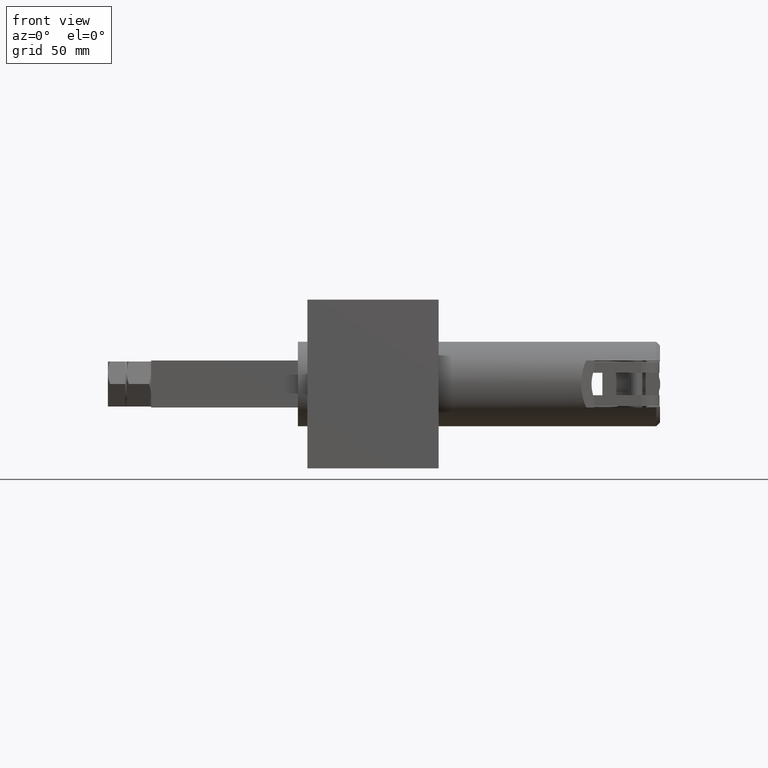
[diagram: clean part render]
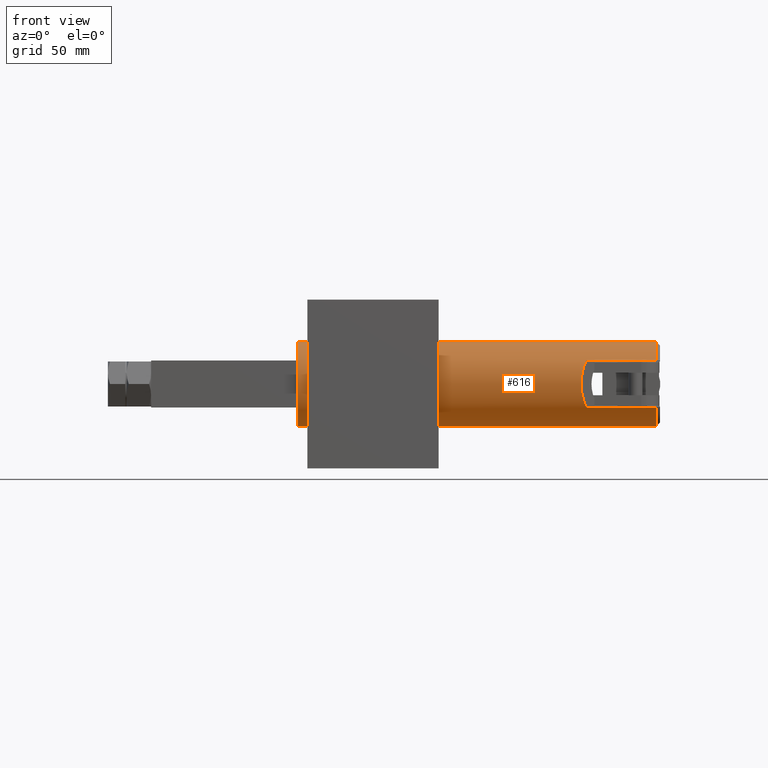
[diagram: same view with one face highlighted and labeled with its STEP entity id]
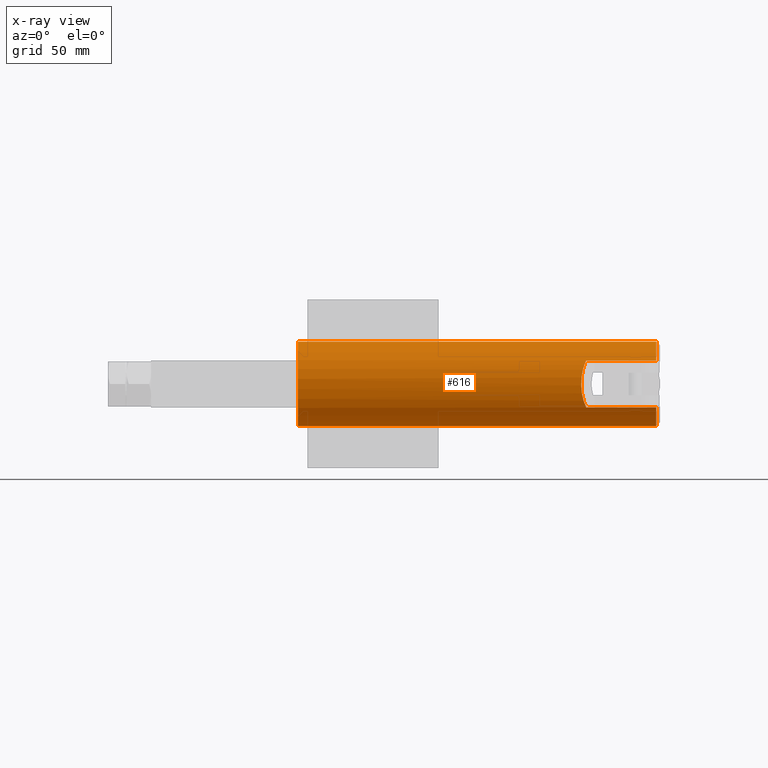
[diagram: x-ray of the same camera — body ghosted, the highlighted face saturated]
A machine part, front view. The second image highlights one B-rep face of the part: STEP entity #616.
The next image is the same camera in x-ray: the body ghosted, the highlighted face saturated — about 0% of this face is hidden behind the body in this view.
In plain terms, the highlighted cylindrical surface (partial cylindrical patch) has radius 22.5 mm, axis along (-1, -0, -0).
Its self-contained STEP definition (entity closure, byte-faithful):
#41 = DIRECTION ( 'NONE',  ( 0.0000000000000000000, 0.0000000000000000000, -1.000000000000000000 ) ) ;
#54 = VERTEX_POINT ( 'NONE', #2473 ) ;
#150 = VERTEX_POINT ( 'NONE', #1984 ) ;
#167 = DIRECTION ( 'NONE',  ( 1.000000000000000000, 0.0000000000000000000, 0.0000000000000000000 ) ) ;
#258 = CARTESIAN_POINT ( 'NONE',  ( 113.6529106895356000, 20.89171306613029000, -12.50000000000002700 ) ) ;
#385 = CARTESIAN_POINT ( 'NONE',  ( 153.0000000000000000, 20.89171306613029000, -12.50000000000002000 ) ) ;
#507 = VERTEX_POINT ( 'NONE', #930 ) ;
#535 = CIRCLE ( 'NONE', #3385, 22.50000000000000400 ) ;
#538 = DIRECTION ( 'NONE',  ( -1.000000000000000000, -0.0000000000000000000, -0.0000000000000000000 ) ) ;
#571 = CARTESIAN_POINT ( 'NONE',  ( -40.00000000000000700, 39.59999999999999400, -22.50000000000002500 ) ) ;
#616 = ADVANCED_FACE ( 'NONE', ( #1163 ), #2190, .T. ) ;
#679 = CARTESIAN_POINT ( 'NONE',  ( 110.0009185683981500, 15.67612779768993300, -4.694026741596359500 ) ) ;
#836 = EDGE_CURVE ( 'NONE', #4101, #54, #1571, .T. ) ;
#930 = CARTESIAN_POINT ( 'NONE',  ( 151.0000000000000000, 39.59999999999999400, 22.49999999999998200 ) ) ;
#932 = CARTESIAN_POINT ( 'NONE',  ( 113.6529106895356000, 20.89171306613029000, -12.50000000000002700 ) ) ;
#952 = CIRCLE ( 'NONE', #3091, 22.50000000000000400 ) ;
#1111 = AXIS2_PLACEMENT_3D ( 'NONE', #2269, #5276, #4003 ) ;
#1137 = VECTOR ( 'NONE', #2405, 1000.000000000000000 ) ;
#1140 = VECTOR ( 'NONE', #2957, 1000.000000000000000 ) ;
#1163 = FACE_OUTER_BOUND ( 'NONE', #1773, .T. ) ;
#1191 = ORIENTED_EDGE ( 'NONE', *, *, #5444, .T. ) ;
#1234 = DIRECTION ( 'NONE',  ( -1.000000000000000000, 0.0000000000000000000, 0.0000000000000000000 ) ) ;
#1311 = VECTOR ( 'NONE', #167, 1000.000000000000000 ) ;
#1361 = ORIENTED_EDGE ( 'NONE', *, *, #5063, .T. ) ;
#1501 = VERTEX_POINT ( 'NONE', #3437 ) ;
#1548 = CARTESIAN_POINT ( 'NONE',  ( 113.6529106895355900, 20.89171306613028300, 12.49999999999997900 ) ) ;
#1549 = ORIENTED_EDGE ( 'NONE', *, *, #4186, .T. ) ;
#1571 =( BOUNDED_CURVE ( )  B_SPLINE_CURVE ( 3, ( #258, #679, #4135, #1548 ),
 .UNSPECIFIED., .F., .F. ) 
 B_SPLINE_CURVE_WITH_KNOTS ( ( 4, 4 ),
 ( 5.694154336963311600, 6.872216277395859900 ),
 .UNSPECIFIED. ) 
 CURVE ( )  GEOMETRIC_REPRESENTATION_ITEM ( )  RATIONAL_B_SPLINE_CURVE ( ( 1.000000000000000000, 0.8876529461887319200, 0.8876529461887319200, 1.000000000000000000 ) ) 
 REPRESENTATION_ITEM ( '' )  );
#1773 = EDGE_LOOP ( 'NONE', ( #4123, #2076, #2515, #3277, #1191, #1361, #5561, #1549 ) ) ;
#1955 = CARTESIAN_POINT ( 'NONE',  ( 151.0000000000000000, 20.89171306613028300, 12.49999999999997500 ) ) ;
#1984 = CARTESIAN_POINT ( 'NONE',  ( -40.00000000000000700, 39.59999999999999400, 22.49999999999998200 ) ) ;
#2054 = EDGE_CURVE ( 'NONE', #4855, #4101, #5461, .T. ) ;
#2076 = ORIENTED_EDGE ( 'NONE', *, *, #2161, .T. ) ;
#2161 = EDGE_CURVE ( 'NONE', #1501, #4855, #4914, .T. ) ;
#2164 = LINE ( 'NONE', #3300, #1137 ) ;
#2190 = CYLINDRICAL_SURFACE ( 'NONE', #1111, 22.50000000000000400 ) ;
#2255 = VERTEX_POINT ( 'NONE', #1955 ) ;
#2269 = CARTESIAN_POINT ( 'NONE',  ( 153.0000000000000000, 39.59999999999999400, -1.938941733757769900E-014 ) ) ;
#2271 = CARTESIAN_POINT ( 'NONE',  ( 153.0000000000000000, 39.59999999999999400, 22.49999999999998200 ) ) ;
#2324 = LINE ( 'NONE', #4434, #1311 ) ;
#2325 = CARTESIAN_POINT ( 'NONE',  ( -40.00000000000000700, 39.59999999999999400, -1.938941733757769900E-014 ) ) ;
#2405 = DIRECTION ( 'NONE',  ( -1.000000000000000000, -0.0000000000000000000, -0.0000000000000000000 ) ) ;
#2473 = CARTESIAN_POINT ( 'NONE',  ( 113.6529106895355900, 20.89171306613028300, 12.49999999999997900 ) ) ;
#2515 = ORIENTED_EDGE ( 'NONE', *, *, #2054, .T. ) ;
#2541 = EDGE_CURVE ( 'NONE', #507, #150, #3343, .T. ) ;
#2624 = DIRECTION ( 'NONE',  ( -1.000000000000000000, 0.0000000000000000000, 0.0000000000000000000 ) ) ;
#2766 = DIRECTION ( 'NONE',  ( 0.0000000000000000000, 0.0000000000000000000, -1.000000000000000000 ) ) ;
#2812 = CARTESIAN_POINT ( 'NONE',  ( 151.0000000000000000, 20.89171306613029000, -12.50000000000002300 ) ) ;
#2957 = DIRECTION ( 'NONE',  ( -1.000000000000000000, -0.0000000000000000000, -0.0000000000000000000 ) ) ;
#3091 = AXIS2_PLACEMENT_3D ( 'NONE', #2325, #5333, #2766 ) ;
#3221 = VERTEX_POINT ( 'NONE', #571 ) ;
#3277 = ORIENTED_EDGE ( 'NONE', *, *, #836, .T. ) ;
#3300 = CARTESIAN_POINT ( 'NONE',  ( 153.0000000000000000, 39.59999999999999400, -22.50000000000002500 ) ) ;
#3343 = LINE ( 'NONE', #2271, #4592 ) ;
#3344 = EDGE_CURVE ( 'NONE', #1501, #3221, #2164, .T. ) ;
#3385 = AXIS2_PLACEMENT_3D ( 'NONE', #3828, #1234, #4252 ) ;
#3437 = CARTESIAN_POINT ( 'NONE',  ( 151.0000000000000000, 39.59999999999999400, -22.50000000000002500 ) ) ;
#3687 = AXIS2_PLACEMENT_3D ( 'NONE', #5171, #2624, #41 ) ;
#3828 = CARTESIAN_POINT ( 'NONE',  ( 151.0000000000000000, 39.59999999999999400, -1.938941733757769900E-014 ) ) ;
#4003 = DIRECTION ( 'NONE',  ( 0.0000000000000000000, 0.0000000000000000000, 1.000000000000000000 ) ) ;
#4101 = VERTEX_POINT ( 'NONE', #932 ) ;
#4123 = ORIENTED_EDGE ( 'NONE', *, *, #3344, .F. ) ;
#4135 = CARTESIAN_POINT ( 'NONE',  ( 110.0009185683981600, 15.67612779768992900, 4.694026741596293700 ) ) ;
#4186 = EDGE_CURVE ( 'NONE', #150, #3221, #952, .T. ) ;
#4252 = DIRECTION ( 'NONE',  ( 0.0000000000000000000, 1.850371707708594000E-015, -1.000000000000000000 ) ) ;
#4434 = CARTESIAN_POINT ( 'NONE',  ( 153.0000000000000000, 20.89171306613028300, 12.49999999999997200 ) ) ;
#4592 = VECTOR ( 'NONE', #538, 1000.000000000000000 ) ;
#4855 = VERTEX_POINT ( 'NONE', #2812 ) ;
#4914 = CIRCLE ( 'NONE', #3687, 22.50000000000000400 ) ;
#5063 = EDGE_CURVE ( 'NONE', #2255, #507, #535, .T. ) ;
#5171 = CARTESIAN_POINT ( 'NONE',  ( 151.0000000000000000, 39.59999999999999400, -1.938941733757769900E-014 ) ) ;
#5276 = DIRECTION ( 'NONE',  ( -1.000000000000000000, -0.0000000000000000000, -0.0000000000000000000 ) ) ;
#5333 = DIRECTION ( 'NONE',  ( 1.000000000000000000, 0.0000000000000000000, 0.0000000000000000000 ) ) ;
#5444 = EDGE_CURVE ( 'NONE', #54, #2255, #2324, .T. ) ;
#5461 = LINE ( 'NONE', #385, #1140 ) ;
#5561 = ORIENTED_EDGE ( 'NONE', *, *, #2541, .T. ) ;